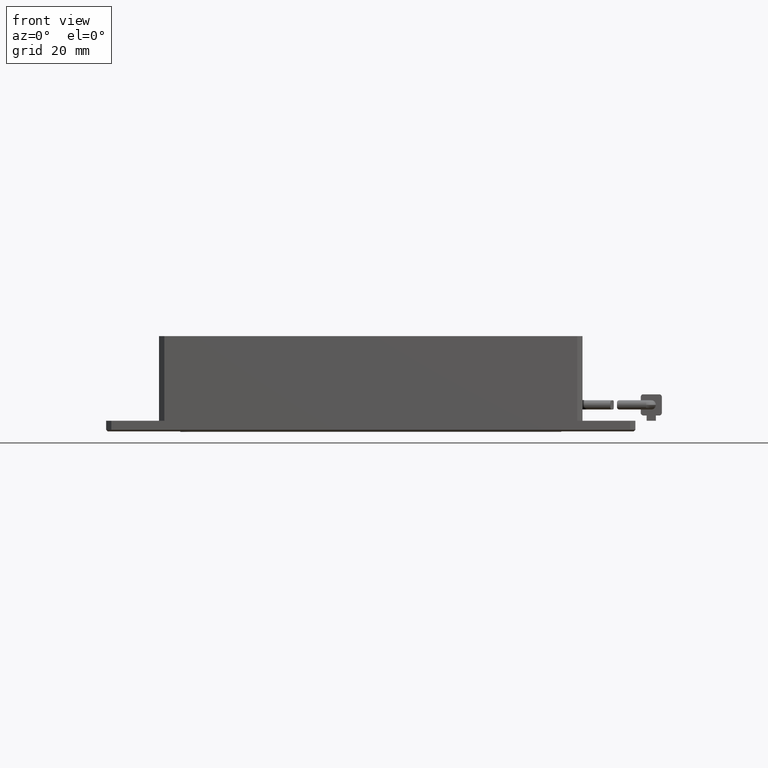
[diagram: clean part render]
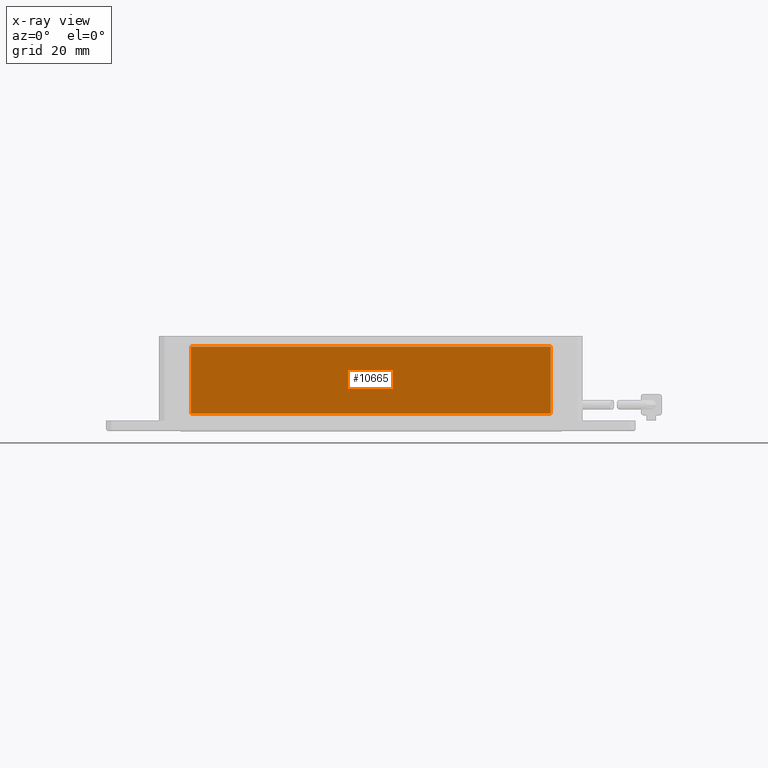
[diagram: x-ray — body ghosted, one internal face saturated and labeled with its STEP entity id]
A machine part, front view, then the same camera in x-ray: the body is ghosted and one INTERNAL B-rep face — a face not visible from any outside direction — is saturated and labeled: STEP entity #10665.
In plain terms, the highlighted planar face has unit normal (0, 1, 0).
Its self-contained STEP definition (entity closure, byte-faithful):
#1362 = EDGE_CURVE ( 'NONE', #6552, #9468, #7922, .T. ) ;
#1445 = DIRECTION ( 'NONE',  ( 1.000000000000000000, -0.0000000000000000000, 0.0000000000000000000 ) ) ;
#2128 = CARTESIAN_POINT ( 'NONE',  ( -16.94768995799925200, -45.20007636502477100, 13.99999999999545400 ) ) ;
#2387 = EDGE_CURVE ( 'NONE', #5432, #6552, #7217, .T. ) ;
#3020 = LINE ( 'NONE', #17613, #6266 ) ;
#3139 = VECTOR ( 'NONE', #8424, 1000.000000000000000 ) ;
#3884 = DIRECTION ( 'NONE',  ( -0.0000000000000000000, -0.0000000000000000000, -1.000000000000000000 ) ) ;
#3910 = ORIENTED_EDGE ( 'NONE', *, *, #9070, .T. ) ;
#4017 = CARTESIAN_POINT ( 'NONE',  ( -16.94768995799924500, -45.20007636502477100, 13.99999999999545400 ) ) ;
#4072 = EDGE_CURVE ( 'NONE', #5638, #5432, #7946, .T. ) ;
#4471 = CARTESIAN_POINT ( 'NONE',  ( -16.94768995799924500, -45.20007636502477100, 1.299999999995453200 ) ) ;
#5338 = PLANE ( 'NONE',  #17298 ) ;
#5396 = DIRECTION ( 'NONE',  ( 0.0000000000000000000, -0.0000000000000000000, 1.000000000000000000 ) ) ;
#5432 = VERTEX_POINT ( 'NONE', #16880 ) ;
#5638 = VERTEX_POINT ( 'NONE', #11823 ) ;
#6266 = VECTOR ( 'NONE', #3884, 1000.000000000000000 ) ;
#6552 = VERTEX_POINT ( 'NONE', #2128 ) ;
#7217 = LINE ( 'NONE', #15290, #3139 ) ;
#7479 = VECTOR ( 'NONE', #1445, 1000.000000000000000 ) ;
#7505 = VECTOR ( 'NONE', #12705, 1000.000000000000000 ) ;
#7641 = ORIENTED_EDGE ( 'NONE', *, *, #1362, .T. ) ;
#7922 = LINE ( 'NONE', #11124, #7479 ) ;
#7946 = LINE ( 'NONE', #4471, #7505 ) ;
#8424 = DIRECTION ( 'NONE',  ( 0.0000000000000000000, -0.0000000000000000000, 1.000000000000000000 ) ) ;
#9070 = EDGE_CURVE ( 'NONE', #9468, #5638, #3020, .T. ) ;
#9429 = ORIENTED_EDGE ( 'NONE', *, *, #4072, .T. ) ;
#9468 = VERTEX_POINT ( 'NONE', #15796 ) ;
#10665 = ADVANCED_FACE ( 'NONE', ( #10921 ), #5338, .T. ) ;
#10921 = FACE_OUTER_BOUND ( 'NONE', #14839, .T. ) ;
#11124 = CARTESIAN_POINT ( 'NONE',  ( -22.94768995799924800, -45.20007636502477100, 13.99999999999545400 ) ) ;
#11823 = CARTESIAN_POINT ( 'NONE',  ( 51.05231004200074800, -45.20007636502477800, 1.299999999995453200 ) ) ;
#12705 = DIRECTION ( 'NONE',  ( -1.000000000000000000, -0.0000000000000000000, 0.0000000000000000000 ) ) ;
#13683 = DIRECTION ( 'NONE',  ( 0.0000000000000000000, 1.000000000000000000, 0.0000000000000000000 ) ) ;
#14839 = EDGE_LOOP ( 'NONE', ( #16653, #7641, #3910, #9429 ) ) ;
#15290 = CARTESIAN_POINT ( 'NONE',  ( -16.94768995799924500, -45.20007636502477100, 13.99999999999545400 ) ) ;
#15796 = CARTESIAN_POINT ( 'NONE',  ( 51.05231004200074800, -45.20007636502477800, 13.99999999999545400 ) ) ;
#16653 = ORIENTED_EDGE ( 'NONE', *, *, #2387, .T. ) ;
#16880 = CARTESIAN_POINT ( 'NONE',  ( -16.94768995799925200, -45.20007636502477100, 1.299999999995453200 ) ) ;
#17298 = AXIS2_PLACEMENT_3D ( 'NONE', #4017, #13683, #5396 ) ;
#17613 = CARTESIAN_POINT ( 'NONE',  ( 51.05231004200074800, -45.20007636502478500, 13.99999999999545400 ) ) ;